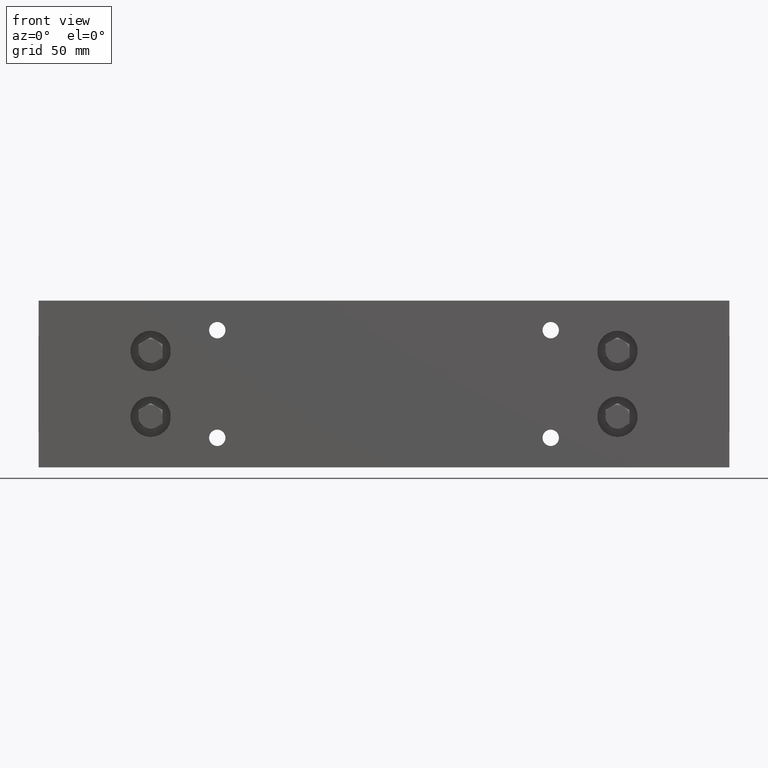
[diagram: clean part render]
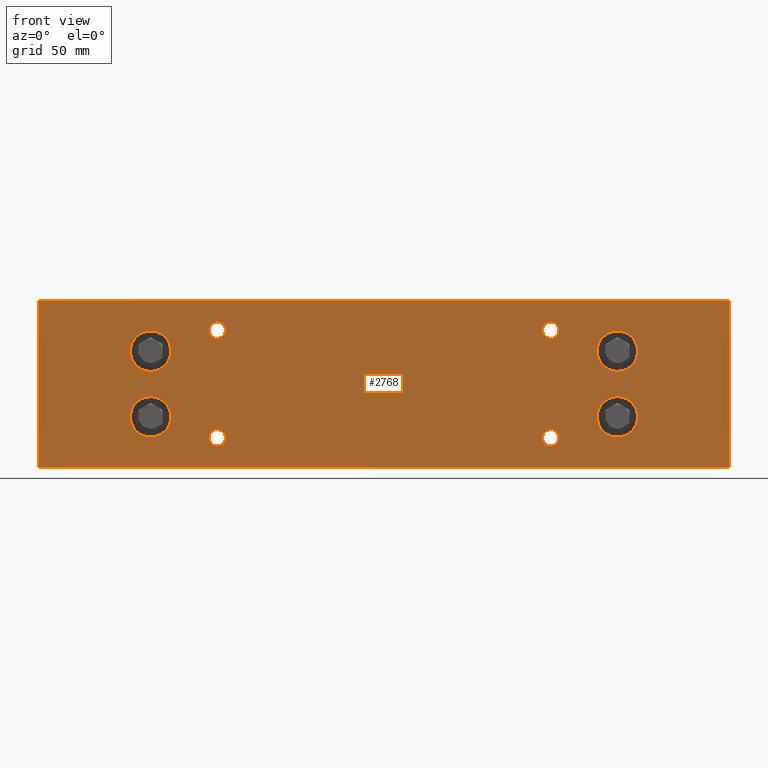
[diagram: same view with one face highlighted and labeled with its STEP entity id]
A machine part, front view. The second image highlights one B-rep face of the part: STEP entity #2768.
In plain terms, the highlighted planar face has unit normal (0, 1, 0).
Its self-contained STEP definition (entity closure, byte-faithful):
#240 = EDGE_CURVE ( 'NONE', #9815, #9815, #16585, .T. ) ;
#294 = EDGE_CURVE ( 'NONE', #24454, #24454, #9135, .T. ) ;
#331 = AXIS2_PLACEMENT_3D ( 'NONE', #3326, #24403, #22544 ) ;
#419 = CARTESIAN_POINT ( 'NONE',  ( 8.400000000000002100, -1.191999999999999900, -1.129999999999999700 ) ) ;
#468 = CARTESIAN_POINT ( 'NONE',  ( 5.463695987328526400E-016, -1.191999999999999900, 0.2649999999999986800 ) ) ;
#648 = EDGE_CURVE ( 'NONE', #13690, #13690, #17359, .T. ) ;
#1003 = CIRCLE ( 'NONE', #19219, 0.1719999999999997100 ) ;
#1149 = FACE_BOUND ( 'NONE', #8589, .T. ) ;
#1532 = CARTESIAN_POINT ( 'NONE',  ( 9.800000000000000700, -1.191999999999999900, -1.115000000000001300 ) ) ;
#1607 = ORIENTED_EDGE ( 'NONE', *, *, #9263, .F. ) ;
#1722 = FACE_BOUND ( 'NONE', #11071, .T. ) ;
#1881 = DIRECTION ( 'NONE',  ( 0.0000000000000000000, 0.0000000000000000000, -1.000000000000000000 ) ) ;
#1928 = CARTESIAN_POINT ( 'NONE',  ( 12.15000000000000200, -1.191999999999999900, -1.750000000000001300 ) ) ;
#2595 = EDGE_LOOP ( 'NONE', ( #14761 ) ) ;
#2707 = VERTEX_POINT ( 'NONE', #8438 ) ;
#2709 = DIRECTION ( 'NONE',  ( -0.0000000000000000000, 1.000000000000000000, -0.0000000000000000000 ) ) ;
#2768 = ADVANCED_FACE ( 'NONE', ( #6243, #1149, #1722, #21422, #11256, #6837, #20796, #15755, #10660 ), #12376, .F. ) ;
#2883 = ORIENTED_EDGE ( 'NONE', *, *, #15844, .F. ) ;
#3326 = CARTESIAN_POINT ( 'NONE',  ( 8.400000000000002100, -1.191999999999999900, 1.130000000000000300 ) ) ;
#3481 = CARTESIAN_POINT ( 'NONE',  ( 1.400000000000001000, -1.191999999999999900, 1.130000000000000300 ) ) ;
#4096 = AXIS2_PLACEMENT_3D ( 'NONE', #21991, #10551, #23936 ) ;
#4565 = CARTESIAN_POINT ( 'NONE',  ( -2.349999999999999200, -1.191999999999999900, 1.750000000000000200 ) ) ;
#4929 = VERTEX_POINT ( 'NONE', #12929 ) ;
#5077 = CARTESIAN_POINT ( 'NONE',  ( 9.800000000000000700, -1.191999999999999900, 0.6899999999999986100 ) ) ;
#5174 = AXIS2_PLACEMENT_3D ( 'NONE', #419, #18723, #7325 ) ;
#5256 = LINE ( 'NONE', #5809, #15367 ) ;
#5272 = EDGE_CURVE ( 'NONE', #2707, #21165, #5256, .T. ) ;
#5389 = DIRECTION ( 'NONE',  ( 0.0000000000000000000, 0.0000000000000000000, 1.000000000000000000 ) ) ;
#5503 = EDGE_LOOP ( 'NONE', ( #16240 ) ) ;
#5512 = EDGE_CURVE ( 'NONE', #17456, #17456, #12936, .T. ) ;
#5648 = ORIENTED_EDGE ( 'NONE', *, *, #11170, .F. ) ;
#5671 = VECTOR ( 'NONE', #17180, 39.37007874015748100 ) ;
#5809 = CARTESIAN_POINT ( 'NONE',  ( -2.349999999999999200, -1.191999999999999900, 1.750000000000000200 ) ) ;
#6170 = CARTESIAN_POINT ( 'NONE',  ( 9.800000000000000700, -1.191999999999999900, 0.2649999999999986800 ) ) ;
#6243 = FACE_BOUND ( 'NONE', #2595, .T. ) ;
#6837 = FACE_BOUND ( 'NONE', #5503, .T. ) ;
#7325 = DIRECTION ( 'NONE',  ( 0.0000000000000000000, 0.0000000000000000000, 1.000000000000000000 ) ) ;
#7531 = CARTESIAN_POINT ( 'NONE',  ( 12.15000000000000200, -1.191999999999999900, 1.749999999999998200 ) ) ;
#7608 = DIRECTION ( 'NONE',  ( 1.000000000000000000, -0.0000000000000000000, -1.318823169355161500E-016 ) ) ;
#8266 = DIRECTION ( 'NONE',  ( -0.0000000000000000000, -1.000000000000000000, -0.0000000000000000000 ) ) ;
#8438 = CARTESIAN_POINT ( 'NONE',  ( -2.349999999999999200, -1.191999999999999900, -1.749999999999999600 ) ) ;
#8473 = EDGE_LOOP ( 'NONE', ( #11370, #15537, #1607, #5648 ) ) ;
#8589 = EDGE_LOOP ( 'NONE', ( #2883 ) ) ;
#9135 = CIRCLE ( 'NONE', #13097, 0.4249999999999999900 ) ;
#9263 = EDGE_CURVE ( 'NONE', #12309, #22649, #20353, .T. ) ;
#9567 = AXIS2_PLACEMENT_3D ( 'NONE', #3481, #16794, #5389 ) ;
#9615 = VECTOR ( 'NONE', #16353, 39.37007874015748100 ) ;
#9815 = VERTEX_POINT ( 'NONE', #19437 ) ;
#10551 = DIRECTION ( 'NONE',  ( 0.0000000000000000000, 1.000000000000000000, 0.0000000000000000000 ) ) ;
#10565 = CARTESIAN_POINT ( 'NONE',  ( 12.15000000000000200, -1.191999999999999900, 1.749999999999998200 ) ) ;
#10660 = FACE_OUTER_BOUND ( 'NONE', #8473, .T. ) ;
#11071 = EDGE_LOOP ( 'NONE', ( #12038 ) ) ;
#11105 = CARTESIAN_POINT ( 'NONE',  ( 1.400000000000001000, -1.191999999999999900, -0.9579999999999999600 ) ) ;
#11170 = EDGE_CURVE ( 'NONE', #21165, #12309, #19908, .T. ) ;
#11256 = FACE_BOUND ( 'NONE', #24686, .T. ) ;
#11322 = CARTESIAN_POINT ( 'NONE',  ( 12.15000000000000200, -1.191999999999999900, 1.749999999999998200 ) ) ;
#11370 = ORIENTED_EDGE ( 'NONE', *, *, #5272, .F. ) ;
#12038 = ORIENTED_EDGE ( 'NONE', *, *, #294, .F. ) ;
#12309 = VERTEX_POINT ( 'NONE', #11322 ) ;
#12376 = PLANE ( 'NONE',  #4096 ) ;
#12559 = EDGE_LOOP ( 'NONE', ( #23481 ) ) ;
#12633 = DIRECTION ( 'NONE',  ( -0.0000000000000000000, -1.000000000000000000, -0.0000000000000000000 ) ) ;
#12772 = CARTESIAN_POINT ( 'NONE',  ( 1.400000000000001000, -1.191999999999999900, 1.302000000000000000 ) ) ;
#12902 = EDGE_CURVE ( 'NONE', #12950, #12950, #20410, .T. ) ;
#12929 = CARTESIAN_POINT ( 'NONE',  ( 5.463695987328526400E-016, -1.191999999999999900, -1.115000000000001300 ) ) ;
#12936 = CIRCLE ( 'NONE', #5174, 0.1719999999999997100 ) ;
#12950 = VERTEX_POINT ( 'NONE', #12772 ) ;
#13024 = CIRCLE ( 'NONE', #15381, 0.4249999999999999900 ) ;
#13097 = AXIS2_PLACEMENT_3D ( 'NONE', #5077, #12633, #16497 ) ;
#13299 = DIRECTION ( 'NONE',  ( -0.0000000000000000000, -1.000000000000000000, -0.0000000000000000000 ) ) ;
#13690 = VERTEX_POINT ( 'NONE', #468 ) ;
#14111 = CARTESIAN_POINT ( 'NONE',  ( 1.400000000000001000, -1.191999999999999900, -1.129999999999999700 ) ) ;
#14525 = EDGE_LOOP ( 'NONE', ( #21838 ) ) ;
#14761 = ORIENTED_EDGE ( 'NONE', *, *, #648, .F. ) ;
#15204 = DIRECTION ( 'NONE',  ( -0.0000000000000000000, -0.0000000000000000000, 1.000000000000000000 ) ) ;
#15367 = VECTOR ( 'NONE', #15204, 39.37007874015748100 ) ;
#15381 = AXIS2_PLACEMENT_3D ( 'NONE', #24743, #13299, #1881 ) ;
#15440 = ORIENTED_EDGE ( 'NONE', *, *, #5512, .T. ) ;
#15537 = ORIENTED_EDGE ( 'NONE', *, *, #21541, .F. ) ;
#15599 = CARTESIAN_POINT ( 'NONE',  ( 5.463695987328526400E-016, -1.191999999999999900, 0.6899999999999986100 ) ) ;
#15755 = FACE_BOUND ( 'NONE', #14525, .T. ) ;
#15844 = EDGE_CURVE ( 'NONE', #4929, #4929, #13024, .T. ) ;
#16034 = EDGE_CURVE ( 'NONE', #24599, #24599, #20477, .T. ) ;
#16057 = DIRECTION ( 'NONE',  ( 0.0000000000000000000, 0.0000000000000000000, 1.000000000000000000 ) ) ;
#16240 = ORIENTED_EDGE ( 'NONE', *, *, #12902, .T. ) ;
#16353 = DIRECTION ( 'NONE',  ( 0.0000000000000000000, 0.0000000000000000000, -1.000000000000000000 ) ) ;
#16497 = DIRECTION ( 'NONE',  ( 0.0000000000000000000, 0.0000000000000000000, -1.000000000000000000 ) ) ;
#16585 = CIRCLE ( 'NONE', #331, 0.1719999999999997100 ) ;
#16794 = DIRECTION ( 'NONE',  ( -0.0000000000000000000, 1.000000000000000000, -0.0000000000000000000 ) ) ;
#16972 = EDGE_CURVE ( 'NONE', #23438, #23438, #1003, .T. ) ;
#17180 = DIRECTION ( 'NONE',  ( -1.000000000000000000, 0.0000000000000000000, 1.130419859447281300E-016 ) ) ;
#17359 = CIRCLE ( 'NONE', #19324, 0.4249999999999999900 ) ;
#17456 = VERTEX_POINT ( 'NONE', #23758 ) ;
#17509 = DIRECTION ( 'NONE',  ( -0.0000000000000000000, -1.000000000000000000, -0.0000000000000000000 ) ) ;
#18723 = DIRECTION ( 'NONE',  ( -0.0000000000000000000, 1.000000000000000000, -0.0000000000000000000 ) ) ;
#19219 = AXIS2_PLACEMENT_3D ( 'NONE', #14111, #2709, #16057 ) ;
#19324 = AXIS2_PLACEMENT_3D ( 'NONE', #15599, #17509, #23120 ) ;
#19437 = CARTESIAN_POINT ( 'NONE',  ( 8.400000000000002100, -1.191999999999999900, 1.302000000000000000 ) ) ;
#19633 = CARTESIAN_POINT ( 'NONE',  ( 9.800000000000000700, -1.191999999999999900, -0.6900000000000012800 ) ) ;
#19908 = LINE ( 'NONE', #7531, #23832 ) ;
#20300 = ORIENTED_EDGE ( 'NONE', *, *, #16972, .T. ) ;
#20353 = LINE ( 'NONE', #10565, #9615 ) ;
#20410 = CIRCLE ( 'NONE', #9567, 0.1719999999999997100 ) ;
#20477 = CIRCLE ( 'NONE', #21305, 0.4249999999999999900 ) ;
#20796 = FACE_BOUND ( 'NONE', #23498, .T. ) ;
#20859 = LINE ( 'NONE', #1928, #5671 ) ;
#21165 = VERTEX_POINT ( 'NONE', #4565 ) ;
#21305 = AXIS2_PLACEMENT_3D ( 'NONE', #19633, #8266, #21582 ) ;
#21422 = FACE_BOUND ( 'NONE', #12559, .T. ) ;
#21541 = EDGE_CURVE ( 'NONE', #22649, #2707, #20859, .T. ) ;
#21582 = DIRECTION ( 'NONE',  ( 0.0000000000000000000, 0.0000000000000000000, -1.000000000000000000 ) ) ;
#21838 = ORIENTED_EDGE ( 'NONE', *, *, #240, .T. ) ;
#21991 = CARTESIAN_POINT ( 'NONE',  ( 4.900000000000002100, -1.191999999999999900, -2.390366994456230100E-016 ) ) ;
#22544 = DIRECTION ( 'NONE',  ( 0.0000000000000000000, 0.0000000000000000000, 1.000000000000000000 ) ) ;
#22649 = VERTEX_POINT ( 'NONE', #24736 ) ;
#23120 = DIRECTION ( 'NONE',  ( 0.0000000000000000000, 0.0000000000000000000, -1.000000000000000000 ) ) ;
#23438 = VERTEX_POINT ( 'NONE', #11105 ) ;
#23481 = ORIENTED_EDGE ( 'NONE', *, *, #16034, .F. ) ;
#23498 = EDGE_LOOP ( 'NONE', ( #15440 ) ) ;
#23758 = CARTESIAN_POINT ( 'NONE',  ( 8.400000000000002100, -1.191999999999999900, -0.9579999999999999600 ) ) ;
#23832 = VECTOR ( 'NONE', #7608, 39.37007874015748100 ) ;
#23936 = DIRECTION ( 'NONE',  ( 0.0000000000000000000, -0.0000000000000000000, 1.000000000000000000 ) ) ;
#24403 = DIRECTION ( 'NONE',  ( -0.0000000000000000000, 1.000000000000000000, -0.0000000000000000000 ) ) ;
#24454 = VERTEX_POINT ( 'NONE', #6170 ) ;
#24599 = VERTEX_POINT ( 'NONE', #1532 ) ;
#24686 = EDGE_LOOP ( 'NONE', ( #20300 ) ) ;
#24736 = CARTESIAN_POINT ( 'NONE',  ( 12.15000000000000200, -1.191999999999999900, -1.750000000000001300 ) ) ;
#24743 = CARTESIAN_POINT ( 'NONE',  ( 5.463695987328526400E-016, -1.191999999999999900, -0.6900000000000012800 ) ) ;